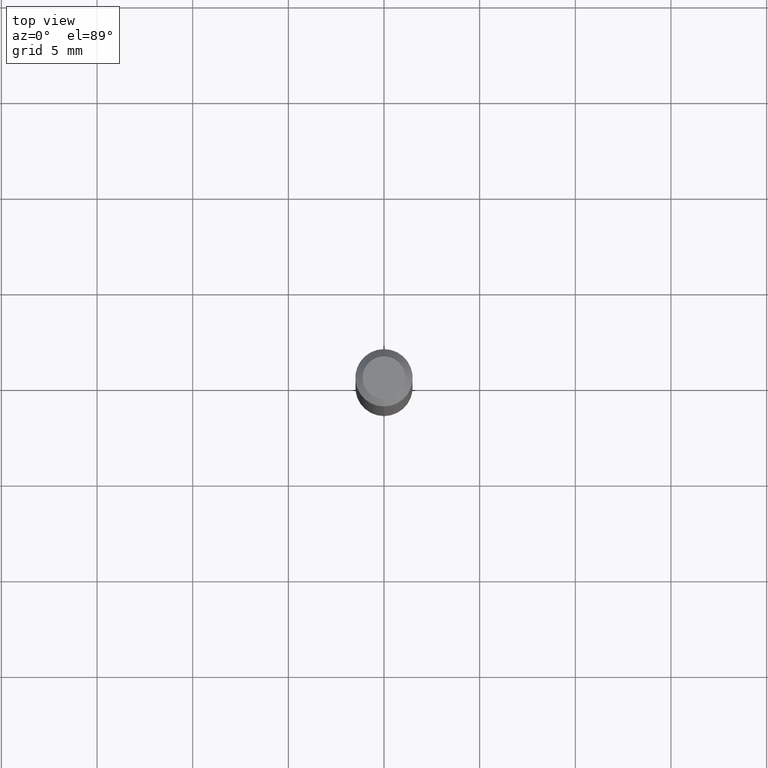
[diagram: clean part render]
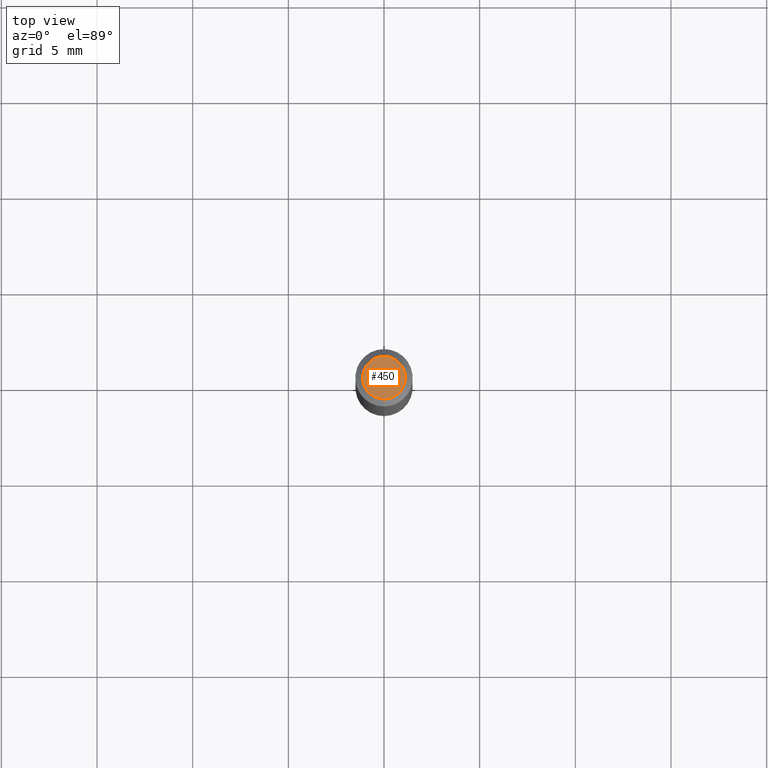
[diagram: same view with one face highlighted and labeled with its STEP entity id]
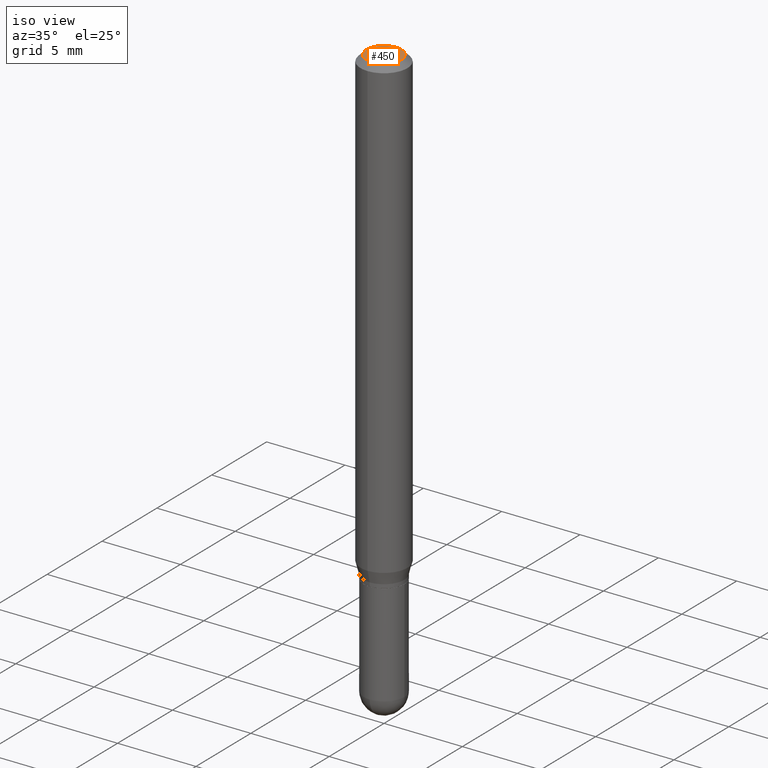
[diagram: same view with one face highlighted and labeled with its STEP entity id]
A machine part, top view. The second image highlights one B-rep face of the part: STEP entity #450.
A second angle (iso view) of the same face is appended — the face is thin or edge-on in the first view.
In plain terms, the highlighted planar face has unit normal (0, -0, -1).
Its self-contained STEP definition (entity closure, byte-faithful):
#4 = DIRECTION ( 'NONE',  ( 6.982962677686265922E-15, 1.000000000000000000, -3.491377669658199163E-15 ) ) ;
#37 = DIRECTION ( 'NONE',  ( -6.982962677686265133E-15, -1.000000000000000000, 3.491377669658199558E-15 ) ) ;
#67 = DIRECTION ( 'NONE',  ( -6.982962677686265133E-15, -1.000000000000000000, 3.491377669658199558E-15 ) ) ;
#87 = CIRCLE ( 'NONE', #406, 0.04404999999999999888 ) ;
#105 = CARTESIAN_POINT ( 'NONE',  ( 5.836726591879914333E-46, -8.332804576564942054E-32, -2.386680950898305570E-17 ) ) ;
#113 = EDGE_CURVE ( 'NONE', #458, #444, #87, .T. ) ;
#116 = PLANE ( 'NONE',  #322 ) ;
#129 = EDGE_LOOP ( 'NONE', ( #288, #273 ) ) ;
#156 = CARTESIAN_POINT ( 'NONE',  ( -3.536586717851222218E-16, -0.04404999999999999888, 1.299283768394606275E-16 ) ) ;
#178 = CARTESIAN_POINT ( 'NONE',  ( 5.836726591879914333E-46, -8.332804576564942054E-32, -2.386680950898305570E-17 ) ) ;
#256 = DIRECTION ( 'NONE',  ( -2.445541197990066903E-29, 3.491377669658199558E-15, 1.000000000000000000 ) ) ;
#266 = CARTESIAN_POINT ( 'NONE',  ( 3.075995059520799729E-16, 0.04404999999999999888, -1.657285911029352156E-16 ) ) ;
#273 = ORIENTED_EDGE ( 'NONE', *, *, #113, .T. ) ;
#288 = ORIENTED_EDGE ( 'NONE', *, *, #343, .T. ) ;
#306 = FACE_OUTER_BOUND ( 'NONE', #129, .T. ) ;
#322 = AXIS2_PLACEMENT_3D ( 'NONE', #266, #433, #4 ) ;
#343 = EDGE_CURVE ( 'NONE', #444, #458, #375, .T. ) ;
#348 = CARTESIAN_POINT ( 'NONE',  ( 3.599717260347271507E-16, 0.04404999999999999888, -1.776619958574267204E-16 ) ) ;
#368 = AXIS2_PLACEMENT_3D ( 'NONE', #178, #463, #37 ) ;
#375 = CIRCLE ( 'NONE', #368, 0.04404999999999999888 ) ;
#406 = AXIS2_PLACEMENT_3D ( 'NONE', #105, #256, #67 ) ;
#433 = DIRECTION ( 'NONE',  ( 2.445541197990066903E-29, -3.491377669658199163E-15, -1.000000000000000000 ) ) ;
#444 = VERTEX_POINT ( 'NONE', #348 ) ;
#450 = ADVANCED_FACE ( 'NONE', ( #306 ), #116, .F. ) ;
#458 = VERTEX_POINT ( 'NONE', #156 ) ;
#463 = DIRECTION ( 'NONE',  ( -2.445541197990066903E-29, 3.491377669658199558E-15, 1.000000000000000000 ) ) ;